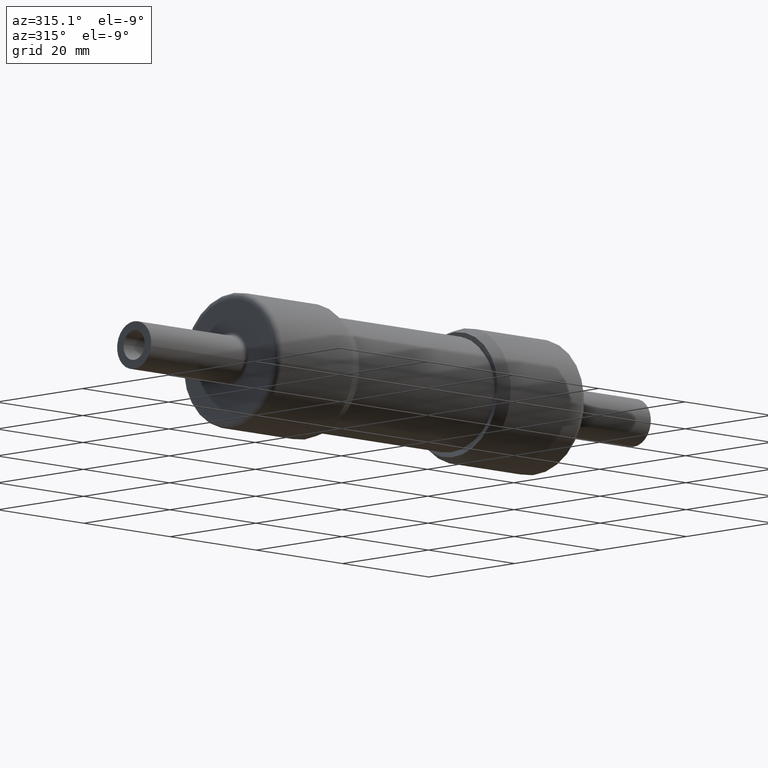
[diagram: clean part render]
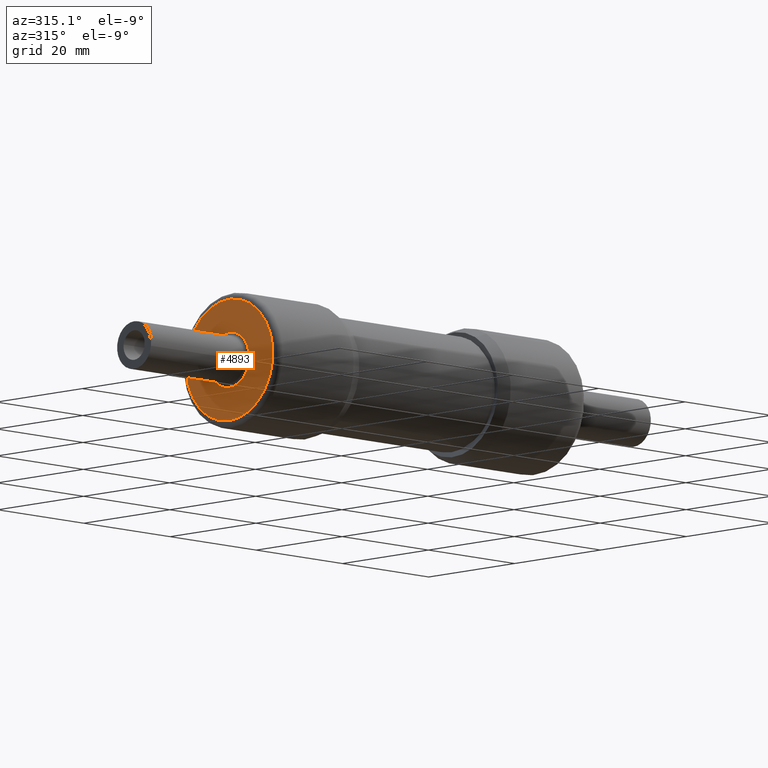
[diagram: same view with one face highlighted and labeled with its STEP entity id]
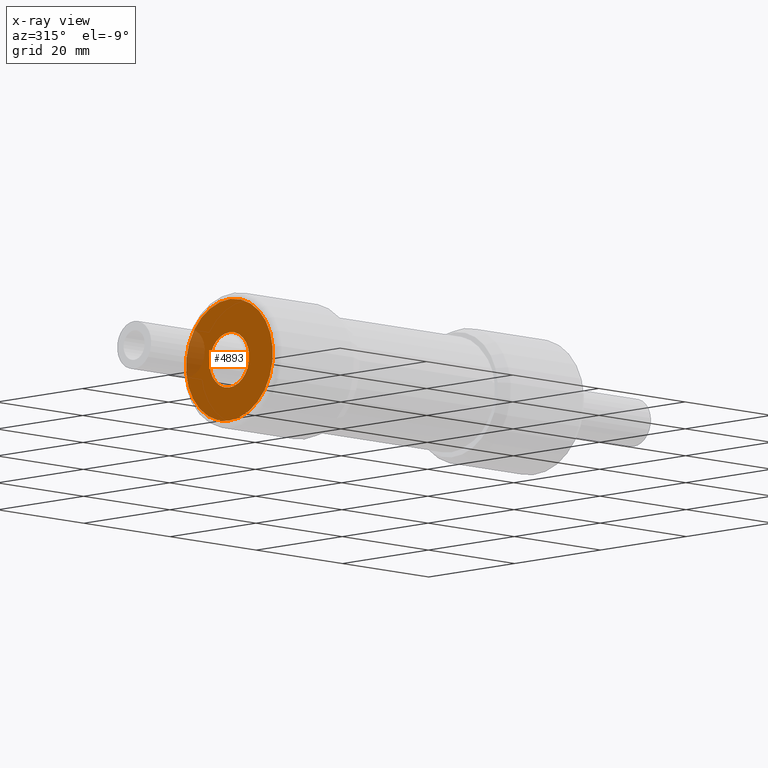
[diagram: x-ray of the same camera — body ghosted, the highlighted face saturated]
A machine part, auxiliary view. The second image highlights one B-rep face of the part: STEP entity #4893.
The next image is the same camera in x-ray: the body ghosted, the highlighted face saturated — about 9% of this face is hidden behind the body in this view.
In plain terms, the highlighted planar face has unit normal (-1, 0, -0).
Its self-contained STEP definition (entity closure, byte-faithful):
#1 = VERTEX_POINT ( 'NONE', #2595 ) ;
#298 = EDGE_LOOP ( 'NONE', ( #2600, #6806 ) ) ;
#354 = DIRECTION ( 'NONE',  ( 1.000000000000000000, -8.586881206085282632E-17, 8.326672684688819499E-17 ) ) ;
#1534 = AXIS2_PLACEMENT_3D ( 'NONE', #5226, #354, #3514 ) ;
#1537 = AXIS2_PLACEMENT_3D ( 'NONE', #6729, #2335, #2896 ) ;
#1688 = CARTESIAN_POINT ( 'NONE',  ( -0.2355000000000001259, -0.3940583503346966610, -0.05587500811184357985 ) ) ;
#1818 = EDGE_CURVE ( 'NONE', #6496, #5041, #3591, .T. ) ;
#2045 = CARTESIAN_POINT ( 'NONE',  ( -0.2354999999999999594, -0.1792074407301006700, -0.02541049363880329773 ) ) ;
#2225 = AXIS2_PLACEMENT_3D ( 'NONE', #3099, #5865, #3623 ) ;
#2229 = CARTESIAN_POINT ( 'NONE',  ( -0.2355000000000000426, 0.3940583503346969385, 0.05587500811184330229 ) ) ;
#2335 = DIRECTION ( 'NONE',  ( 1.000000000000000000, -8.586881206085282632E-17, 8.326672684688819499E-17 ) ) ;
#2595 = CARTESIAN_POINT ( 'NONE',  ( -0.2354999999999999594, 0.1792074407301009475, 0.02541049363880304099 ) ) ;
#2600 = ORIENTED_EDGE ( 'NONE', *, *, #6359, .T. ) ;
#2896 = DIRECTION ( 'NONE',  ( 0.000000000000000000, 0.9900963576248624776, 0.1403894676176964673 ) ) ;
#3099 = CARTESIAN_POINT ( 'NONE',  ( -0.2354999999999999871, 1.212467626299230878E-16, -1.175726183078043669E-16 ) ) ;
#3183 = DIRECTION ( 'NONE',  ( -1.000000000000000000, 8.586881206085177861E-17, -8.326672684688831825E-17 ) ) ;
#3265 = FACE_OUTER_BOUND ( 'NONE', #6587, .T. ) ;
#3514 = DIRECTION ( 'NONE',  ( 0.000000000000000000, 0.9900963576248624776, 0.1403894676176964673 ) ) ;
#3591 = CIRCLE ( 'NONE', #2225, 0.3980000000000014637 ) ;
#3623 = DIRECTION ( 'NONE',  ( 8.579924603216875331E-17, 0.9900963576248625886, 0.1403894676176964951 ) ) ;
#3736 = PLANE ( 'NONE',  #7059 ) ;
#3866 = VERTEX_POINT ( 'NONE', #2045 ) ;
#3933 = CIRCLE ( 'NONE', #5870, 0.3980000000000014637 ) ;
#3963 = CIRCLE ( 'NONE', #1534, 0.1810000000000007159 ) ;
#4133 = EDGE_CURVE ( 'NONE', #5041, #6496, #3933, .T. ) ;
#4302 = CIRCLE ( 'NONE', #1537, 0.1810000000000007159 ) ;
#4357 = CARTESIAN_POINT ( 'NONE',  ( -0.2354999999999999871, 1.212467626299230878E-16, -1.175726183078043669E-16 ) ) ;
#4862 = DIRECTION ( 'NONE',  ( -1.000000000000000000, 8.586881206085282632E-17, -8.326672684688819499E-17 ) ) ;
#4893 = ADVANCED_FACE ( 'NONE', ( #5849, #3265 ), #3736, .T. ) ;
#4894 = DIRECTION ( 'NONE',  ( 8.579924603216875331E-17, 0.9900963576248625886, 0.1403894676176964951 ) ) ;
#5041 = VERTEX_POINT ( 'NONE', #2229 ) ;
#5226 = CARTESIAN_POINT ( 'NONE',  ( -0.2354999999999999871, 1.212467626299230878E-16, -1.175726183078043669E-16 ) ) ;
#5686 = ORIENTED_EDGE ( 'NONE', *, *, #4133, .T. ) ;
#5849 = FACE_BOUND ( 'NONE', #298, .T. ) ;
#5865 = DIRECTION ( 'NONE',  ( -1.000000000000000000, 8.586881206085282632E-17, -8.326672684688819499E-17 ) ) ;
#5870 = AXIS2_PLACEMENT_3D ( 'NONE', #4357, #4862, #4894 ) ;
#6335 = ORIENTED_EDGE ( 'NONE', *, *, #1818, .T. ) ;
#6359 = EDGE_CURVE ( 'NONE', #1, #3866, #3963, .T. ) ;
#6429 = DIRECTION ( 'NONE',  ( 7.332862660272040719E-17, 0.9900963576248625886, 0.1403894676176964951 ) ) ;
#6496 = VERTEX_POINT ( 'NONE', #1688 ) ;
#6531 = EDGE_CURVE ( 'NONE', #3866, #1, #4302, .T. ) ;
#6587 = EDGE_LOOP ( 'NONE', ( #5686, #6335 ) ) ;
#6729 = CARTESIAN_POINT ( 'NONE',  ( -0.2354999999999999871, 1.212467626299230878E-16, -1.175726183078043669E-16 ) ) ;
#6806 = ORIENTED_EDGE ( 'NONE', *, *, #6531, .T. ) ;
#6983 = CARTESIAN_POINT ( 'NONE',  ( -0.2354999999999999871, 1.212467626299230878E-16, -1.175726183078043669E-16 ) ) ;
#7059 = AXIS2_PLACEMENT_3D ( 'NONE', #6983, #3183, #6429 ) ;